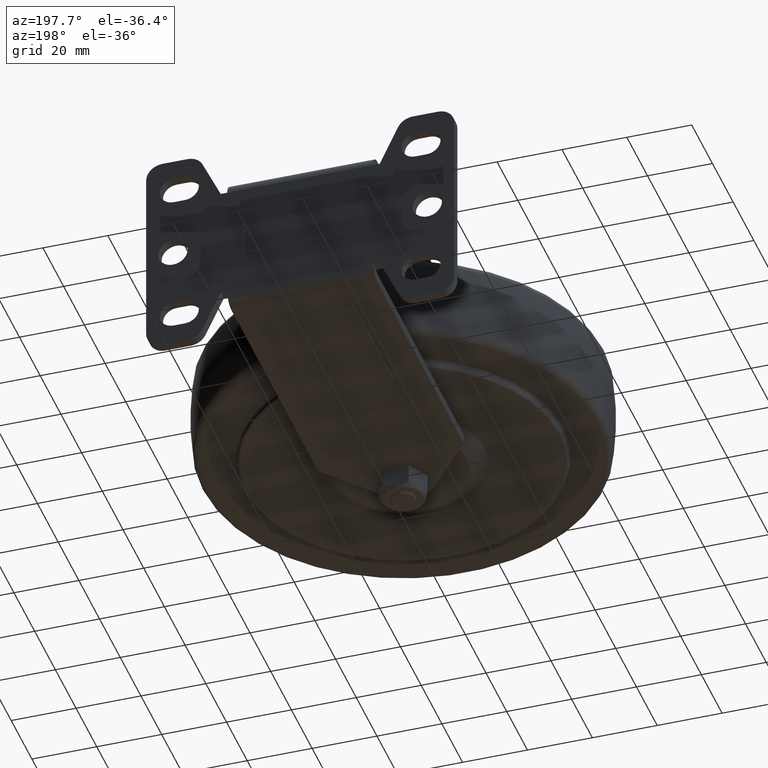
[diagram: clean part render]
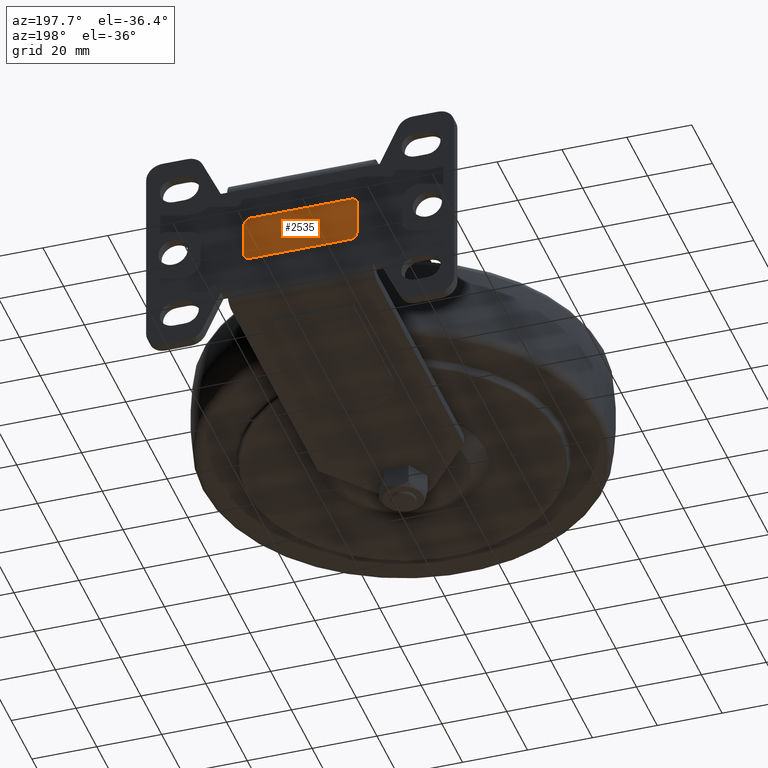
[diagram: same view with one face highlighted and labeled with its STEP entity id]
A machine part, auxiliary view. The second image highlights one B-rep face of the part: STEP entity #2535.
In plain terms, the highlighted planar face has unit normal (0, 1, 0).
Its self-contained STEP definition (entity closure, byte-faithful):
#82 = DIRECTION ( 'NONE',  ( 0.000000000000000000, 0.000000000000000000, 1.000000000000000000 ) ) ;
#149 = DIRECTION ( 'NONE',  ( -1.000000000000000000, 0.000000000000000000, 9.912705577010325549E-17 ) ) ;
#154 = CIRCLE ( 'NONE', #3075, 2.000000000000000000 ) ;
#159 = CARTESIAN_POINT ( 'NONE',  ( 17.49999999999999289, 99.00000000000000000, -5.500000000000000888 ) ) ;
#270 = EDGE_CURVE ( 'NONE', #2858, #4286, #3698, .T. ) ;
#577 = CIRCLE ( 'NONE', #3814, 2.000000000000000000 ) ;
#716 = CARTESIAN_POINT ( 'NONE',  ( 17.49999999999999289, 99.00000000000000000, 5.500000000000000000 ) ) ;
#722 = ORIENTED_EDGE ( 'NONE', *, *, #3112, .T. ) ;
#838 = LINE ( 'NONE', #1192, #2162 ) ;
#858 = CARTESIAN_POINT ( 'NONE',  ( 7.304098846218135653E-17, 99.00000000000000000, 0.000000000000000000 ) ) ;
#885 = PLANE ( 'NONE',  #2626 ) ;
#912 = VERTEX_POINT ( 'NONE', #3338 ) ;
#996 = EDGE_CURVE ( 'NONE', #1826, #2572, #4893, .T. ) ;
#1192 = CARTESIAN_POINT ( 'NONE',  ( -17.50000000000001066, 99.00000000000000000, 7.500000000000003553 ) ) ;
#1376 = CARTESIAN_POINT ( 'NONE',  ( -17.50000000000001066, 99.00000000000000000, -5.499999999999998224 ) ) ;
#1381 = CARTESIAN_POINT ( 'NONE',  ( 17.49999999999999289, 99.00000000000000000, 7.499999999999999112 ) ) ;
#1448 = EDGE_CURVE ( 'NONE', #4286, #3118, #577, .T. ) ;
#1496 = CARTESIAN_POINT ( 'NONE',  ( -15.50000000000001243, 99.00000000000000000, -5.499999999999998224 ) ) ;
#1522 = AXIS2_PLACEMENT_3D ( 'NONE', #1496, #2985, #3726 ) ;
#1578 = FACE_OUTER_BOUND ( 'NONE', #2141, .T. ) ;
#1613 = CARTESIAN_POINT ( 'NONE',  ( 15.49999999999999112, 99.00000000000000000, -7.500000000000000888 ) ) ;
#1826 = VERTEX_POINT ( 'NONE', #3819 ) ;
#1828 = VECTOR ( 'NONE', #1987, 1000.000000000000000 ) ;
#1856 = ORIENTED_EDGE ( 'NONE', *, *, #2993, .T. ) ;
#1987 = DIRECTION ( 'NONE',  ( 1.000000000000000000, -0.000000000000000000, -1.239088197126290570E-16 ) ) ;
#2050 = DIRECTION ( 'NONE',  ( 0.000000000000000000, 1.000000000000000000, 0.000000000000000000 ) ) ;
#2134 = DIRECTION ( 'NONE',  ( 0.000000000000000000, 0.000000000000000000, -1.000000000000000000 ) ) ;
#2141 = EDGE_LOOP ( 'NONE', ( #2335, #722, #4266, #2925, #2540, #2341, #3732, #1856 ) ) ;
#2162 = VECTOR ( 'NONE', #3416, 1000.000000000000000 ) ;
#2179 = EDGE_CURVE ( 'NONE', #3240, #2225, #838, .T. ) ;
#2225 = VERTEX_POINT ( 'NONE', #3046 ) ;
#2335 = ORIENTED_EDGE ( 'NONE', *, *, #2179, .T. ) ;
#2341 = ORIENTED_EDGE ( 'NONE', *, *, #1448, .T. ) ;
#2397 = CIRCLE ( 'NONE', #4462, 2.000000000000000000 ) ;
#2400 = DIRECTION ( 'NONE',  ( 0.000000000000000000, -0.000000000000000000, 1.000000000000000000 ) ) ;
#2415 = CARTESIAN_POINT ( 'NONE',  ( 17.49999999999999289, 99.00000000000000000, 7.499999999999999112 ) ) ;
#2504 = EDGE_CURVE ( 'NONE', #3118, #912, #2693, .T. ) ;
#2535 = ADVANCED_FACE ( 'NONE', ( #1578 ), #885, .T. ) ;
#2540 = ORIENTED_EDGE ( 'NONE', *, *, #270, .T. ) ;
#2572 = VERTEX_POINT ( 'NONE', #4033 ) ;
#2626 = AXIS2_PLACEMENT_3D ( 'NONE', #858, #2764, #2400 ) ;
#2680 = DIRECTION ( 'NONE',  ( 0.000000000000000000, 1.000000000000000000, 0.000000000000000000 ) ) ;
#2693 = LINE ( 'NONE', #3533, #2873 ) ;
#2726 = CARTESIAN_POINT ( 'NONE',  ( -15.50000000000001066, 99.00000000000000000, 5.500000000000003553 ) ) ;
#2728 = CARTESIAN_POINT ( 'NONE',  ( 15.49999999999999112, 99.00000000000000000, 5.500000000000000000 ) ) ;
#2764 = DIRECTION ( 'NONE',  ( 0.000000000000000000, 1.000000000000000000, 0.000000000000000000 ) ) ;
#2858 = VERTEX_POINT ( 'NONE', #716 ) ;
#2873 = VECTOR ( 'NONE', #149, 1000.000000000000000 ) ;
#2925 = ORIENTED_EDGE ( 'NONE', *, *, #4366, .T. ) ;
#2985 = DIRECTION ( 'NONE',  ( 0.000000000000000000, 1.000000000000000000, 0.000000000000000000 ) ) ;
#2993 = EDGE_CURVE ( 'NONE', #912, #3240, #3423, .T. ) ;
#3046 = CARTESIAN_POINT ( 'NONE',  ( -17.50000000000001066, 99.00000000000000000, 5.500000000000003553 ) ) ;
#3075 = AXIS2_PLACEMENT_3D ( 'NONE', #2728, #3474, #82 ) ;
#3112 = EDGE_CURVE ( 'NONE', #2225, #1826, #2397, .T. ) ;
#3118 = VERTEX_POINT ( 'NONE', #1613 ) ;
#3240 = VERTEX_POINT ( 'NONE', #1376 ) ;
#3338 = CARTESIAN_POINT ( 'NONE',  ( -15.50000000000001066, 99.00000000000000000, -7.499999999999997335 ) ) ;
#3416 = DIRECTION ( 'NONE',  ( -0.000000000000000000, -0.000000000000000000, 1.000000000000000000 ) ) ;
#3423 = CIRCLE ( 'NONE', #1522, 2.000000000000000000 ) ;
#3474 = DIRECTION ( 'NONE',  ( 0.000000000000000000, 1.000000000000000000, 0.000000000000000000 ) ) ;
#3533 = CARTESIAN_POINT ( 'NONE',  ( 17.49999999999999289, 99.00000000000000000, -7.500000000000000888 ) ) ;
#3562 = DIRECTION ( 'NONE',  ( 0.000000000000000000, 0.000000000000000000, 1.000000000000000000 ) ) ;
#3698 = LINE ( 'NONE', #1381, #4522 ) ;
#3726 = DIRECTION ( 'NONE',  ( 0.000000000000000000, 0.000000000000000000, 1.000000000000000000 ) ) ;
#3732 = ORIENTED_EDGE ( 'NONE', *, *, #2504, .T. ) ;
#3814 = AXIS2_PLACEMENT_3D ( 'NONE', #3882, #2050, #3562 ) ;
#3819 = CARTESIAN_POINT ( 'NONE',  ( -15.50000000000001066, 99.00000000000000000, 7.500000000000003553 ) ) ;
#3882 = CARTESIAN_POINT ( 'NONE',  ( 15.49999999999999112, 99.00000000000000000, -5.500000000000000888 ) ) ;
#4033 = CARTESIAN_POINT ( 'NONE',  ( 15.49999999999999112, 99.00000000000000000, 7.499999999999999112 ) ) ;
#4264 = DIRECTION ( 'NONE',  ( 0.000000000000000000, 0.000000000000000000, 1.000000000000000000 ) ) ;
#4266 = ORIENTED_EDGE ( 'NONE', *, *, #996, .T. ) ;
#4286 = VERTEX_POINT ( 'NONE', #159 ) ;
#4366 = EDGE_CURVE ( 'NONE', #2572, #2858, #154, .T. ) ;
#4462 = AXIS2_PLACEMENT_3D ( 'NONE', #2726, #2680, #4264 ) ;
#4522 = VECTOR ( 'NONE', #2134, 1000.000000000000000 ) ;
#4893 = LINE ( 'NONE', #2415, #1828 ) ;